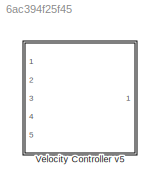
MODEL slx_6ac394f25f45
KIND library
CONFIG AbsTol = auto
CONFIG EnableMultiTasking = off
CONFIG FixedStep = auto
CONFIG MaxStep = auto
CONFIG MinStep = auto
CONFIG RelTol = 1e-3
CONFIG SampleTimeConstraint = Unconstrained
CONFIG Solver = VariableStepAuto
CONFIG SolverName = VariableStepAuto
CONFIG StartTime = 0.0
CONFIG StopTime = 10.0
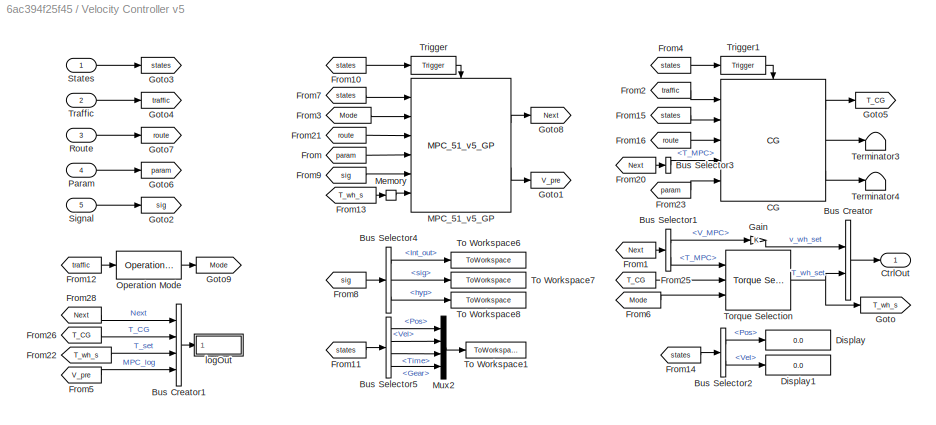
BLOCK [SubSystem] Velocity Controller v5
  Ports = [5, 1]
  RequestExecContextInheritance = off
  TreatAsAtomicUnit = on
BLOCK [BusCreator] Velocity Controller v5/Bus Creator
  DisplayOption = bar
  InheritFromInputs = on
  Inputs = 2
  Ports = [2, 1]
BLOCK [BusCreator] Velocity Controller v5/Bus Creator1
  DisplayOption = bar
  InheritFromInputs = on
  Inputs = 4
  Ports = [4, 1]
BLOCK [BusSelector] Velocity Controller v5/Bus Selector1
  OutputSignals = V_MPC,T_MPC
  Ports = [1, 2]
BLOCK [BusSelector] Velocity Controller v5/Bus Selector2
  OutputSignals = Pos,Vel
  Ports = [1, 2]
BLOCK [BusSelector] Velocity Controller v5/Bus Selector3
  OutputSignals = T_MPC
  Ports = [1, 1]
BLOCK [BusSelector] Velocity Controller v5/Bus Selector4
  OutputSignals = Int_out,sig,hyp
  Ports = [1, 3]
BLOCK [BusSelector] Velocity Controller v5/Bus Selector5
  OutputSignals = Pos,Vel,Time,Gear
  Ports = [1, 4]
BLOCK [Reference] Velocity Controller v5/CG  REF=Thesis_Sublibraries/CG
  Ports = [5, 3, 0, 1]
  SourceBlock = Thesis_Sublibraries/CG
BLOCK [Outport] Velocity Controller v5/CtrlOut
  VectorParamsAs1DForOutWhenUnconnected = off
BLOCK [Display] Velocity Controller v5/Display
  Decimation = 1
  Ports = [1]
BLOCK [Display] Velocity Controller v5/Display1
  Decimation = 1
  Ports = [1]
BLOCK [From] Velocity Controller v5/From
  GotoTag = param
BLOCK [From] Velocity Controller v5/From1
  GotoTag = Next
BLOCK [From] Velocity Controller v5/From10
  GotoTag = states
BLOCK [From] Velocity Controller v5/From11
  GotoTag = states
BLOCK [From] Velocity Controller v5/From12
  GotoTag = traffic
BLOCK [From] Velocity Controller v5/From13
  GotoTag = T_wh_s
BLOCK [From] Velocity Controller v5/From14
  GotoTag = states
BLOCK [From] Velocity Controller v5/From15
  GotoTag = states
BLOCK [From] Velocity Controller v5/From16
  GotoTag = route
BLOCK [From] Velocity Controller v5/From2
  GotoTag = traffic
BLOCK [From] Velocity Controller v5/From20
  GotoTag = Next
BLOCK [From] Velocity Controller v5/From21
  GotoTag = route
BLOCK [From] Velocity Controller v5/From22
  GotoTag = T_wh_s
BLOCK [From] Velocity Controller v5/From23
  GotoTag = param
BLOCK [From] Velocity Controller v5/From25
  GotoTag = T_CG
BLOCK [From] Velocity Controller v5/From26
  GotoTag = T_CG
BLOCK [From] Velocity Controller v5/From28
  GotoTag = Next
BLOCK [From] Velocity Controller v5/From3
  GotoTag = Mode
BLOCK [From] Velocity Controller v5/From4
  GotoTag = states
BLOCK [From] Velocity Controller v5/From5
  GotoTag = V_pre
BLOCK [From] Velocity Controller v5/From6
  GotoTag = Mode
BLOCK [From] Velocity Controller v5/From7
  GotoTag = states
BLOCK [From] Velocity Controller v5/From8
  GotoTag = sig
BLOCK [From] Velocity Controller v5/From9
  GotoTag = sig
BLOCK [Gain] Velocity Controller v5/Gain
BLOCK [Goto] Velocity Controller v5/Goto
  GotoTag = T_wh_s
BLOCK [Goto] Velocity Controller v5/Goto1
  GotoTag = V_pre
BLOCK [Goto] Velocity Controller v5/Goto2
  GotoTag = sig
BLOCK [Goto] Velocity Controller v5/Goto3
  GotoTag = states
BLOCK [Goto] Velocity Controller v5/Goto4
  GotoTag = traffic
BLOCK [Goto] Velocity Controller v5/Goto5
  GotoTag = T_CG
BLOCK [Goto] Velocity Controller v5/Goto6
  GotoTag = param
BLOCK [Goto] Velocity Controller v5/Goto7
  GotoTag = route
BLOCK [Goto] Velocity Controller v5/Goto8
  GotoTag = Next
BLOCK [Goto] Velocity Controller v5/Goto9
  GotoTag = Mode
BLOCK [Reference] Velocity Controller v5/MPC_51_v5_GP  REF=MPC_51_v5_GP_CL/MPC_51_v5_GP
  Ports = [6, 2, 0, 1]
  SourceBlock = MPC_51_v5_GP_CL/MPC_51_v5_GP
BLOCK [Memory] Velocity Controller v5/Memory
  InitialCondition = 11
BLOCK [Mux] Velocity Controller v5/Mux2
  DisplayOption = bar
  Ports = [4, 1]
BLOCK [Reference] Velocity Controller v5/Operation Mode  REF=Thesis_Sublibraries/Operation Mode
  Ports = [1, 1]
  SourceBlock = Thesis_Sublibraries/Operation Mode
BLOCK [Inport] Velocity Controller v5/Param
  Port = 4
BLOCK [Inport] Velocity Controller v5/Route
  Port = 3
BLOCK [Inport] Velocity Controller v5/Signal
  Port = 5
BLOCK [Inport] Velocity Controller v5/States
BLOCK [Terminator] Velocity Controller v5/Terminator3
BLOCK [Terminator] Velocity Controller v5/Terminator4
BLOCK [ToWorkspace] Velocity Controller v5/To Workspace1
  FixptAsFi = on
  MaxDataPoints = inf
  Ports = [1]
  SampleTime = -1
  VariableName = States
BLOCK [ToWorkspace] Velocity Controller v5/To Workspace6
  MaxDataPoints = inf
  Ports = [1]
  SampleTime = -1
  VariableName = Int_out
BLOCK [ToWorkspace] Velocity Controller v5/To Workspace7
  MaxDataPoints = inf
  Ports = [1]
  SampleTime = -1
  VariableName = Sig_out
BLOCK [ToWorkspace] Velocity Controller v5/To Workspace8
  MaxDataPoints = inf
  Ports = [1]
  SampleTime = -1
  VariableName = hyp_out
BLOCK [Reference] Velocity Controller v5/Torque Selection  REF=Thesis_Sublibraries/Torque Selection
  Ports = [3, 1]
  SourceBlock = Thesis_Sublibraries/Torque Selection
BLOCK [Inport] Velocity Controller v5/Traffic
  Port = 2
BLOCK [Reference] Velocity Controller v5/Trigger  REF=Thesis_Sublibraries/Trigger
  NameLocation = top
  Ports = [1, 1]
  SourceBlock = Thesis_Sublibraries/Trigger
BLOCK [Reference] Velocity Controller v5/Trigger1  REF=Thesis_Sublibraries/Trigger
  NameLocation = top
  Ports = [1, 1]
  SourceBlock = Thesis_Sublibraries/Trigger
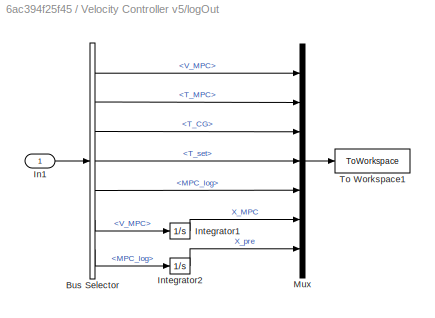
BLOCK [SubSystem] Velocity Controller v5/logOut
  Ports = [1]
  RequestExecContextInheritance = off
BLOCK [BusSelector] Velocity Controller v5/logOut/Bus Selector
  OutputSignals = Next.V_MPC,Next.T_MPC,T_CG,T_set,MPC_log,Next.V_MPC,MPC_log
  Ports = [1, 7]
BLOCK [Inport] Velocity Controller v5/logOut/In1
BLOCK [Integrator] Velocity Controller v5/logOut/Integrator1
  Ports = [1, 1]
BLOCK [Integrator] Velocity Controller v5/logOut/Integrator2
  Ports = [1, 1]
BLOCK [Mux] Velocity Controller v5/logOut/Mux
  DisplayOption = bar
  Inputs = 7
  Ports = [7, 1]
BLOCK [ToWorkspace] Velocity Controller v5/logOut/To Workspace1
  MaxDataPoints = inf
  Ports = [1]
  SampleTime = -1
  SaveFormat = Structure With Time
  VariableName = Vel_Ctrl_Out
LINE Velocity Controller v5/Bus Creator1:1 -> Velocity Controller v5/logOut:1
LINE Velocity Controller v5/Bus Creator:1 -> Velocity Controller v5/CtrlOut:1
LINE Velocity Controller v5/Bus Selector1:1 -> Velocity Controller v5/Gain:1
LINE Velocity Controller v5/Bus Selector1:2 -> Velocity Controller v5/Torque Selection:1
LINE Velocity Controller v5/Bus Selector2:1 -> Velocity Controller v5/Display:1
LINE Velocity Controller v5/Bus Selector2:2 -> Velocity Controller v5/Display1:1
LINE Velocity Controller v5/Bus Selector3:1 -> Velocity Controller v5/CG:4
LINE Velocity Controller v5/Bus Selector4:1 -> Velocity Controller v5/To Workspace6:1
LINE Velocity Controller v5/Bus Selector4:2 -> Velocity Controller v5/To Workspace7:1
LINE Velocity Controller v5/Bus Selector4:3 -> Velocity Controller v5/To Workspace8:1
LINE Velocity Controller v5/Bus Selector5:1 -> Velocity Controller v5/Mux2:1
LINE Velocity Controller v5/Bus Selector5:2 -> Velocity Controller v5/Mux2:2
LINE Velocity Controller v5/Bus Selector5:3 -> Velocity Controller v5/Mux2:3
LINE Velocity Controller v5/Bus Selector5:4 -> Velocity Controller v5/Mux2:4
LINE Velocity Controller v5/CG:1 -> Velocity Controller v5/Goto5:1
LINE Velocity Controller v5/CG:2 -> Velocity Controller v5/Terminator3:1
LINE Velocity Controller v5/CG:3 -> Velocity Controller v5/Terminator4:1
LINE Velocity Controller v5/From10:1 -> Velocity Controller v5/Trigger:1
LINE Velocity Controller v5/From11:1 -> Velocity Controller v5/Bus Selector5:1
LINE Velocity Controller v5/From12:1 -> Velocity Controller v5/Operation Mode:1
LINE Velocity Controller v5/From13:1 -> Velocity Controller v5/Memory:1
LINE Velocity Controller v5/From14:1 -> Velocity Controller v5/Bus Selector2:1
LINE Velocity Controller v5/From15:1 -> Velocity Controller v5/CG:2
LINE Velocity Controller v5/From16:1 -> Velocity Controller v5/CG:3
LINE Velocity Controller v5/From1:1 -> Velocity Controller v5/Bus Selector1:1
LINE Velocity Controller v5/From20:1 -> Velocity Controller v5/Bus Selector3:1
LINE Velocity Controller v5/From21:1 -> Velocity Controller v5/MPC_51_v5_GP:3
LINE Velocity Controller v5/From22:1 -> Velocity Controller v5/Bus Creator1:3
LINE Velocity Controller v5/From23:1 -> Velocity Controller v5/CG:5
LINE Velocity Controller v5/From25:1 -> Velocity Controller v5/Torque Selection:2
LINE Velocity Controller v5/From26:1 -> Velocity Controller v5/Bus Creator1:2
LINE Velocity Controller v5/From28:1 -> Velocity Controller v5/Bus Creator1:1
LINE Velocity Controller v5/From2:1 -> Velocity Controller v5/CG:1
LINE Velocity Controller v5/From3:1 -> Velocity Controller v5/MPC_51_v5_GP:2
LINE Velocity Controller v5/From4:1 -> Velocity Controller v5/Trigger1:1
LINE Velocity Controller v5/From5:1 -> Velocity Controller v5/Bus Creator1:4
LINE Velocity Controller v5/From6:1 -> Velocity Controller v5/Torque Selection:3
LINE Velocity Controller v5/From7:1 -> Velocity Controller v5/MPC_51_v5_GP:1
LINE Velocity Controller v5/From8:1 -> Velocity Controller v5/Bus Selector4:1
LINE Velocity Controller v5/From9:1 -> Velocity Controller v5/MPC_51_v5_GP:5
LINE Velocity Controller v5/From:1 -> Velocity Controller v5/MPC_51_v5_GP:4
LINE Velocity Controller v5/Gain:1 -> Velocity Controller v5/Bus Creator:1
LINE Velocity Controller v5/MPC_51_v5_GP:1 -> Velocity Controller v5/Goto8:1
LINE Velocity Controller v5/MPC_51_v5_GP:2 -> Velocity Controller v5/Goto1:1
LINE Velocity Controller v5/Memory:1 -> Velocity Controller v5/MPC_51_v5_GP:6
LINE Velocity Controller v5/Mux2:1 -> Velocity Controller v5/To Workspace1:1
LINE Velocity Controller v5/Operation Mode:1 -> Velocity Controller v5/Goto9:1
LINE Velocity Controller v5/Param:1 -> Velocity Controller v5/Goto6:1
LINE Velocity Controller v5/Route:1 -> Velocity Controller v5/Goto7:1
LINE Velocity Controller v5/Signal:1 -> Velocity Controller v5/Goto2:1
LINE Velocity Controller v5/States:1 -> Velocity Controller v5/Goto3:1
NET Velocity Controller v5/Torque Selection:1 -> Velocity Controller v5/Bus Creator:2, Velocity Controller v5/Goto:1
LINE Velocity Controller v5/Traffic:1 -> Velocity Controller v5/Goto4:1
LINE Velocity Controller v5/Trigger1:1 -> Velocity Controller v5/CG:trigger
LINE Velocity Controller v5/Trigger:1 -> Velocity Controller v5/MPC_51_v5_GP:trigger
LINE Velocity Controller v5/logOut/Bus Selector:1 -> Velocity Controller v5/logOut/Mux:1
LINE Velocity Controller v5/logOut/Bus Selector:2 -> Velocity Controller v5/logOut/Mux:2
LINE Velocity Controller v5/logOut/Bus Selector:3 -> Velocity Controller v5/logOut/Mux:3
LINE Velocity Controller v5/logOut/Bus Selector:4 -> Velocity Controller v5/logOut/Mux:4
LINE Velocity Controller v5/logOut/Bus Selector:5 -> Velocity Controller v5/logOut/Mux:5
LINE Velocity Controller v5/logOut/Bus Selector:6 -> Velocity Controller v5/logOut/Integrator1:1
LINE Velocity Controller v5/logOut/Bus Selector:7 -> Velocity Controller v5/logOut/Integrator2:1
LINE Velocity Controller v5/logOut/In1:1 -> Velocity Controller v5/logOut/Bus Selector:1
LINE Velocity Controller v5/logOut/Integrator1:1 -> Velocity Controller v5/logOut/Mux:6
LINE Velocity Controller v5/logOut/Integrator2:1 -> Velocity Controller v5/logOut/Mux:7
LINE Velocity Controller v5/logOut/Mux:1 -> Velocity Controller v5/logOut/To Workspace1:1
note: NET lines group one-source signal fan-out (src -> all destinations, sorted); 1:1 wires keep LINE
